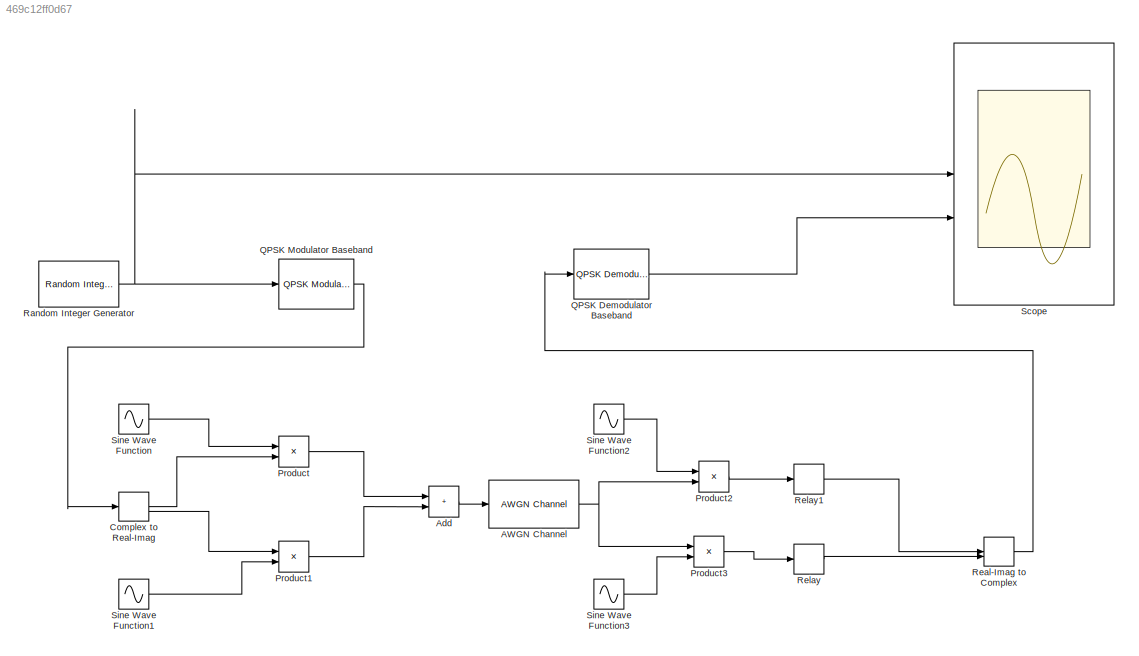
MODEL slx_469c12ff0d67
KIND model
CONFIG AbsTol = auto
CONFIG EnableMultiTasking = off
CONFIG FixedStep = auto
CONFIG MaxStep = auto
CONFIG MinStep = auto
CONFIG RelTol = 1e-3
CONFIG SampleTimeConstraint = Unconstrained
CONFIG SolverName = VariableStepAuto
CONFIG StartTime = 0.0
CONFIG StopTime = 10.0
WORKSPACE source: mxarray member
WORKSPACE samp = 10
BLOCK [Reference] AWGN Channel  REF=commchan3/AWGN
Channel
  SourceBlock = commchan3/AWGN\nChannel
  SourceType = AWGN Channel
BLOCK [Sum] Add
  IconShape = rectangular
BLOCK [ComplexToRealImag] Complex to Real-Imag
BLOCK [Product] Product
BLOCK [Product] Product1
BLOCK [Product] Product2
BLOCK [Product] Product3
BLOCK [Reference] QPSK Demodulator Baseband  REF=commdigbbndpm3/QPSK
Demodulator
Baseband
  SourceBlock = commdigbbndpm3/QPSK\nDemodulator\nBaseband
  SourceType = QPSK Demodulator Baseband
BLOCK [Reference] QPSK Modulator Baseband  REF=commdigbbndpm3/QPSK
Modulator
Baseband
  SourceBlock = commdigbbndpm3/QPSK\nModulator\nBaseband
  SourceType = QPSK Modulator Baseband
BLOCK [Reference] Random Integer Generator  REF=commrandsrc3/Random Integer
Generator
  SourceBlock = commrandsrc3/Random Integer\nGenerator
  SourceType = Random Integer Generator
BLOCK [RealImagToComplex] Real-Imag to Complex
BLOCK [Relay] Relay
  OffOutputValue = -1/2^0.5
  OffSwitchValue = -15
  OnOutputValue = 1/2^0.5
  OnSwitchValue = 15
BLOCK [Relay] Relay1
  OffOutputValue = -1/2^0.5
  OffSwitchValue = -15
  OnOutputValue = 1/2^0.5
  OnSwitchValue = 15
BLOCK [Scope] Scope
  Floating = off
  NumInputPorts = 2
  ScopeSpecificationString = Simulink.scopes.TimeScopeBlockCfg('CurrentConfiguration', extmgr.ConfigurationSet(extmgr.Configuration('Core','General UI',true),extmgr.Configuration('Core','Source UI',true),extmgr.Configuration('Sources','WiredSimulink',true),extmgr.Configuration('Visuals','Time Domain',true,'SerializedDisplays',{struct('MinYLimReal','-0.375','MaxYLimReal','3.375','YLabelReal','','MinYLimMag','0.00000','MaxYLimM...<+2224ch>
BLOCK [Sin] Sine Wave Function
  Amplitude = samp
  Frequency = 4*2*pi
  Phase = pi/2
  SampleTime = 0.001
BLOCK [Sin] Sine Wave Function1
  Amplitude = samp
  Frequency = 4*2*pi
  SampleTime = 0.001
BLOCK [Sin] Sine Wave Function2
  Amplitude = samp
  Frequency = 4*2*pi
  Phase = pi/2
  SampleTime = 0.001
BLOCK [Sin] Sine Wave Function3
  Amplitude = samp
  Frequency = 4*2*pi
  SampleTime = 0.001
NET AWGN Channel:1 -> Product2:2, Product3:1
LINE Add:1 -> AWGN Channel:1
LINE Complex to Real-Imag:1 -> Product:2
LINE Complex to Real-Imag:2 -> Product1:1
LINE Product1:1 -> Add:2
LINE Product2:1 -> Relay1:1
LINE Product3:1 -> Relay:1
LINE Product:1 -> Add:1
LINE QPSK Demodulator Baseband:1 -> Scope:2
LINE QPSK Modulator Baseband:1 -> Complex to Real-Imag:1
NET Random Integer Generator:1 -> QPSK Modulator Baseband:1, Scope:1
LINE Real-Imag to Complex:1 -> QPSK Demodulator Baseband:1
LINE Relay1:1 -> Real-Imag to Complex:1
LINE Relay:1 -> Real-Imag to Complex:2
LINE Sine Wave Function1:1 -> Product1:2
LINE Sine Wave Function2:1 -> Product2:1
LINE Sine Wave Function3:1 -> Product3:2
LINE Sine Wave Function:1 -> Product:1
note: NET lines group one-source signal fan-out (src -> all destinations, sorted); 1:1 wires keep LINE
